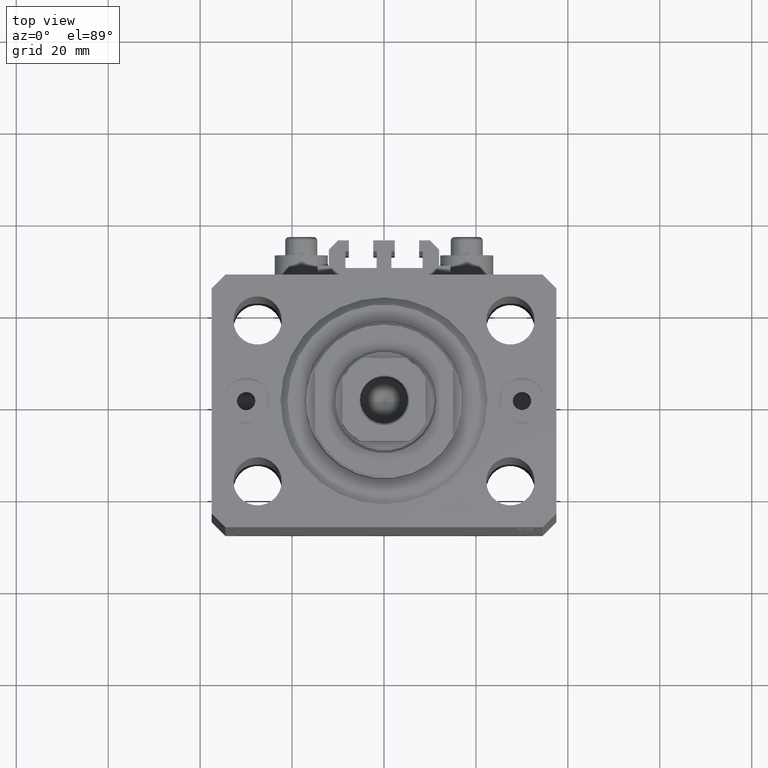
[diagram: clean part render]
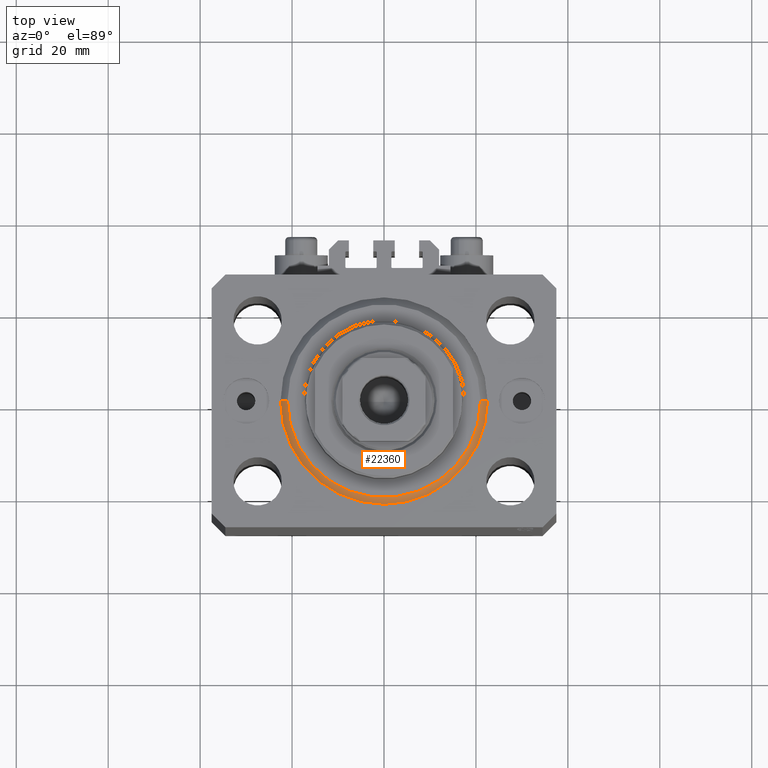
[diagram: same view with one face highlighted and labeled with its STEP entity id]
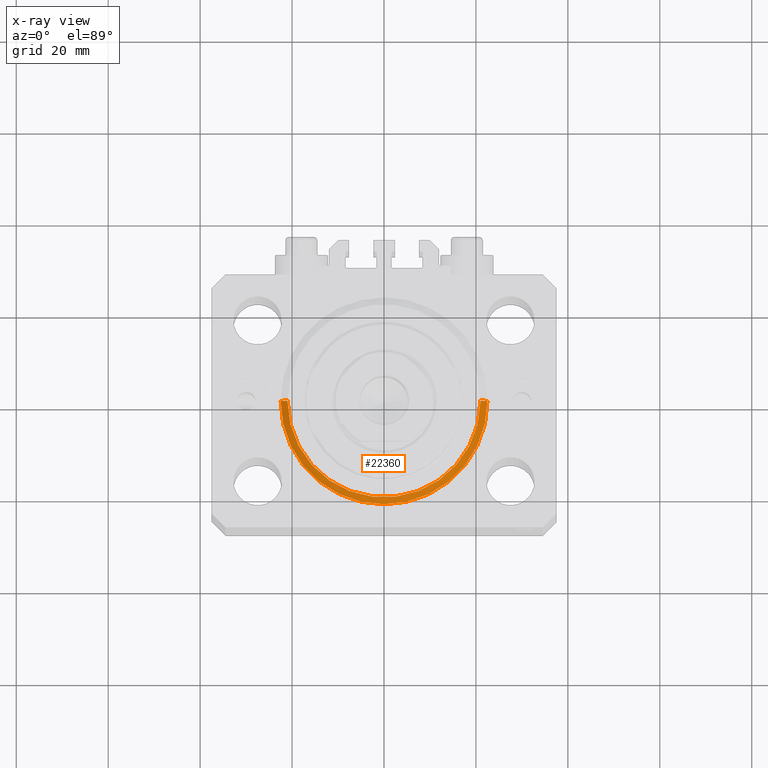
[diagram: x-ray of the same camera — body ghosted, the highlighted face saturated]
A machine part, top view. The second image highlights one B-rep face of the part: STEP entity #22360.
The next image is the same camera in x-ray: the body ghosted, the highlighted face saturated — about 0% of this face is hidden behind the body in this view.
In plain terms, the highlighted conical surface has half-angle 45 deg.
Its self-contained STEP definition (entity closure, byte-faithful):
#1989 = VERTEX_POINT ( 'NONE', #16223 ) ;
#2945 = CONICAL_SURFACE ( 'NONE', #38008, 22.50000000000000355, 0.7853981633974517207 ) ;
#2964 = VERTEX_POINT ( 'NONE', #7449 ) ;
#7449 = CARTESIAN_POINT ( 'NONE',  ( 20.99999999999995381, 0.000000000000000000, 0.000000000000000000 ) ) ;
#9436 = CARTESIAN_POINT ( 'NONE',  ( 0.000000000000000000, 0.000000000000000000, 1.500000000000039524 ) ) ;
#10839 = CARTESIAN_POINT ( 'NONE',  ( 0.000000000000000000, 0.000000000000000000, 1.500000000000039524 ) ) ;
#10894 = EDGE_CURVE ( 'NONE', #1989, #27643, #12663, .T. ) ;
#11720 = ORIENTED_EDGE ( 'NONE', *, *, #10894, .F. ) ;
#12663 = LINE ( 'NONE', #23675, #35863 ) ;
#12780 = DIRECTION ( 'NONE',  ( -0.000000000000000000, -0.000000000000000000, 1.000000000000000000 ) ) ;
#14460 = EDGE_CURVE ( 'NONE', #2964, #1989, #40521, .T. ) ;
#15157 = EDGE_CURVE ( 'NONE', #27643, #23238, #26071, .T. ) ;
#16223 = CARTESIAN_POINT ( 'NONE',  ( -20.99999999999995381, 2.663606788145490261E-15, 0.000000000000000000 ) ) ;
#17778 = EDGE_LOOP ( 'NONE', ( #11720, #20085, #21740, #23951 ) ) ;
#19311 = CARTESIAN_POINT ( 'NONE',  ( -22.50000000000000355, 0.000000000000000000, 1.500000000000039524 ) ) ;
#19926 = AXIS2_PLACEMENT_3D ( 'NONE', #26135, #36647, #29249 ) ;
#20085 = ORIENTED_EDGE ( 'NONE', *, *, #14460, .F. ) ;
#21369 = DIRECTION ( 'NONE',  ( -0.000000000000000000, -0.000000000000000000, 1.000000000000000000 ) ) ;
#21541 = EDGE_CURVE ( 'NONE', #2964, #23238, #28764, .T. ) ;
#21609 = FACE_OUTER_BOUND ( 'NONE', #17778, .T. ) ;
#21740 = ORIENTED_EDGE ( 'NONE', *, *, #21541, .T. ) ;
#22360 = ADVANCED_FACE ( 'NONE', ( #21609 ), #2945, .T. ) ;
#23238 = VERTEX_POINT ( 'NONE', #23970 ) ;
#23675 = CARTESIAN_POINT ( 'NONE',  ( -22.50000000000000355, 2.755455298081545172E-15, 1.500000000000039524 ) ) ;
#23951 = ORIENTED_EDGE ( 'NONE', *, *, #15157, .F. ) ;
#23970 = CARTESIAN_POINT ( 'NONE',  ( 22.50000000000000355, 2.755455298081544383E-15, 1.500000000000039524 ) ) ;
#26071 = CIRCLE ( 'NONE', #45153, 22.50000000000000355 ) ;
#26135 = CARTESIAN_POINT ( 'NONE',  ( 0.000000000000000000, 0.000000000000000000, 0.000000000000000000 ) ) ;
#26565 = VECTOR ( 'NONE', #43318, 1000.000000000000114 ) ;
#27643 = VERTEX_POINT ( 'NONE', #19311 ) ;
#28764 = LINE ( 'NONE', #32818, #26565 ) ;
#29249 = DIRECTION ( 'NONE',  ( 1.000000000000000000, 0.000000000000000000, 0.000000000000000000 ) ) ;
#29953 = DIRECTION ( 'NONE',  ( -0.7071067811865500152, 8.659560562354962440E-17, 0.7071067811865451302 ) ) ;
#32818 = CARTESIAN_POINT ( 'NONE',  ( 22.50000000000000355, 0.000000000000000000, 1.500000000000039524 ) ) ;
#35863 = VECTOR ( 'NONE', #29953, 1000.000000000000114 ) ;
#36647 = DIRECTION ( 'NONE',  ( -0.000000000000000000, -0.000000000000000000, -1.000000000000000000 ) ) ;
#38008 = AXIS2_PLACEMENT_3D ( 'NONE', #10839, #21369, #39512 ) ;
#39512 = DIRECTION ( 'NONE',  ( 1.000000000000000000, 0.000000000000000000, 0.000000000000000000 ) ) ;
#40521 = CIRCLE ( 'NONE', #19926, 20.99999999999995381 ) ;
#43318 = DIRECTION ( 'NONE',  ( 0.7071067811865500152, 0.000000000000000000, 0.7071067811865451302 ) ) ;
#45153 = AXIS2_PLACEMENT_3D ( 'NONE', #9436, #12780, #46222 ) ;
#46222 = DIRECTION ( 'NONE',  ( 1.000000000000000000, 0.000000000000000000, 0.000000000000000000 ) ) ;